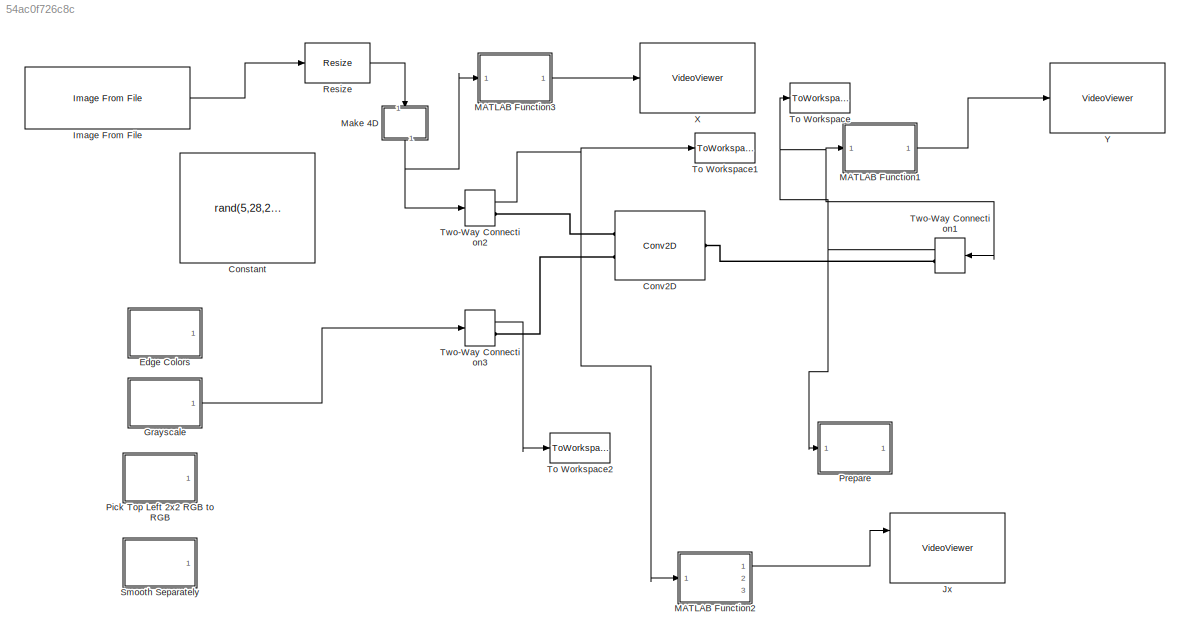
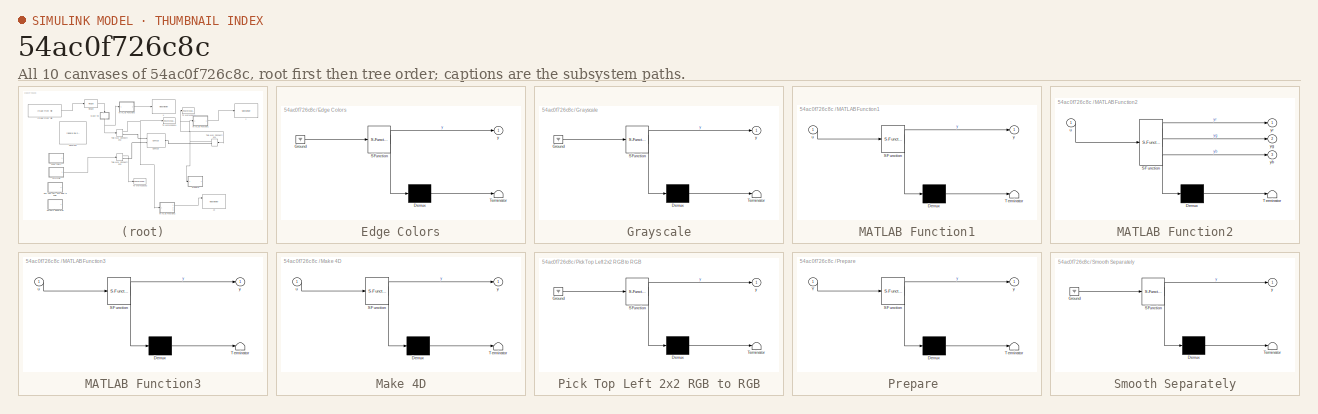
[diagram: thumbnail index - all 10 canvases of the model, root first then tree order]
MODEL slx_54ac0f726c8c
KIND model
CONFIG AbsTol = auto
CONFIG EnableMultiTasking = off
CONFIG FixedStep = 1
CONFIG MaxStep = auto
CONFIG MinStep = auto
CONFIG RelTol = 1e-3
CONFIG SampleTimeConstraint = Unconstrained
CONFIG Solver = FixedStepDiscrete
CONFIG SolverName = FixedStepDiscrete
CONFIG StartTime = 0.0
CONFIG StopTime = 1
BLOCK [Constant] Constant
  Commented = on
  Value = rand(5,28,28,3)
BLOCK [Reference] Conv2D  REF=ad_blocks/Conv2D  (lib defined in slx_3af8d3de87d3)
  Ports = [0, 0, 0, 0, 0, 2, 1]
  SourceBlock = ad_blocks/Conv2D
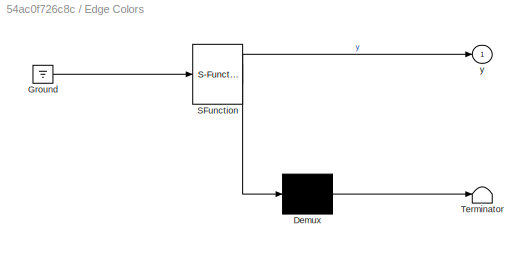
BLOCK [SubSystem] Edge Colors
  ErrorFcn = Stateflow.Translate.translate
  PermitHierarchicalResolution = ExplicitOnly
  Ports = [0, 1]
  RequestExecContextInheritance = off
  SFBlockType = MATLAB Function
  TreatAsAtomicUnit = on
  Variant = off
BLOCK [Demux] Edge Colors/ Demux 
  Outputs = 1
  Ports = [1, 1]
BLOCK [Ground] Edge Colors/ Ground 
BLOCK [S-Function] Edge Colors/ SFunction 
  EnableBusSupport = on
  FunctionName = sf_sfun
  PortCounts = [1 2]
  Ports = [1, 2]
  SFcnIsStateOwnerBlock = off
  SFunctionDeploymentMode = off
  Tag = Stateflow S-Function test_conv2d 8
BLOCK [Terminator] Edge Colors/ Terminator 
BLOCK [Outport] Edge Colors/y
  IconDisplay = Port number
BLOCK [SubSystem] Grayscale
  ErrorFcn = Stateflow.Translate.translate
  PermitHierarchicalResolution = ExplicitOnly
  Ports = [0, 1]
  RequestExecContextInheritance = off
  SFBlockType = MATLAB Function
  TreatAsAtomicUnit = on
  Variant = off
BLOCK [Demux] Grayscale/ Demux 
  Outputs = 1
  Ports = [1, 1]
BLOCK [Ground] Grayscale/ Ground 
BLOCK [S-Function] Grayscale/ SFunction 
  EnableBusSupport = on
  FunctionName = sf_sfun
  PortCounts = [1 2]
  Ports = [1, 2]
  SFcnIsStateOwnerBlock = off
  SFunctionDeploymentMode = off
  Tag = Stateflow S-Function test_conv2d 7
BLOCK [Terminator] Grayscale/ Terminator 
BLOCK [Outport] Grayscale/y
  IconDisplay = Port number
BLOCK [Reference] Image From File  REF=visionsources/Image From File
  Ports = [0, 1]
  SourceBlock = visionsources/Image From File
  SourceProductBaseCode = VP
  SourceProductName = Computer Vision System Toolbox
  SourceType = Image From File
  Tag = vipblks_nd
BLOCK [VideoViewer] Jx
  FigPos = [481 1033 1440 774]
  Ports = [3]
  ScopeSpecificationString = vipscopes.VideoViewerScopeCfg('CurrentConfiguration', extmgr.ConfigurationSet(extmgr.Configuration('Core','General UI',true),extmgr.Configuration('Core','Source UI',true),extmgr.Configuration('Sources','WiredSimulink',true),extmgr.Configuration('Visuals','Video',true),extmgr.Configuration('Tools','Image Navigation Tools',true,'FitToView',true),extmgr.Configuration('Tools','Image Tool',true),extmgr...<+94ch>
  colormapValue = gray(256)
  imagePorts = separate color signals
BLOCK [SubSystem] MATLAB Function1
  ErrorFcn = Stateflow.Translate.translate
  PermitHierarchicalResolution = ExplicitOnly
  Ports = [1, 1]
  RequestExecContextInheritance = off
  SFBlockType = MATLAB Function
  TreatAsAtomicUnit = on
  Variant = off
BLOCK [Demux] MATLAB Function1/ Demux 
  Outputs = 1
  Ports = [1, 1]
BLOCK [S-Function] MATLAB Function1/ SFunction 
  EnableBusSupport = on
  FunctionName = sf_sfun
  PortCounts = [1 2]
  Ports = [1, 2]
  SFcnIsStateOwnerBlock = off
  SFunctionDeploymentMode = off
  Tag = Stateflow S-Function test_conv2d 1
BLOCK [Terminator] MATLAB Function1/ Terminator 
BLOCK [Inport] MATLAB Function1/u
  IconDisplay = Port number
BLOCK [Outport] MATLAB Function1/y
  IconDisplay = Port number
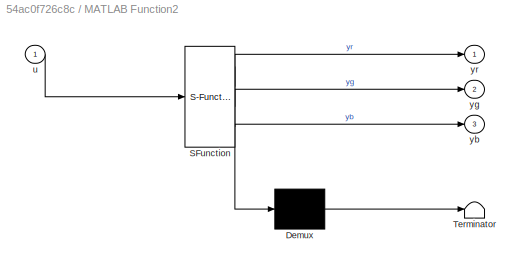
BLOCK [SubSystem] MATLAB Function2
  ErrorFcn = Stateflow.Translate.translate
  PermitHierarchicalResolution = ExplicitOnly
  Ports = [1, 3]
  RequestExecContextInheritance = off
  SFBlockType = MATLAB Function
  TreatAsAtomicUnit = on
  Variant = off
BLOCK [Demux] MATLAB Function2/ Demux 
  Outputs = 1
  Ports = [1, 1]
BLOCK [S-Function] MATLAB Function2/ SFunction 
  EnableBusSupport = on
  FunctionName = sf_sfun
  PortCounts = [1 4]
  Ports = [1, 4]
  SFcnIsStateOwnerBlock = off
  SFunctionDeploymentMode = off
  Tag = Stateflow S-Function test_conv2d 9
BLOCK [Terminator] MATLAB Function2/ Terminator 
BLOCK [Inport] MATLAB Function2/u
  IconDisplay = Port number
BLOCK [Outport] MATLAB Function2/yb
  IconDisplay = Port number
  Port = 3
BLOCK [Outport] MATLAB Function2/yg
  IconDisplay = Port number
  Port = 2
BLOCK [Outport] MATLAB Function2/yr
  IconDisplay = Port number
BLOCK [SubSystem] MATLAB Function3
  ErrorFcn = Stateflow.Translate.translate
  PermitHierarchicalResolution = ExplicitOnly
  Ports = [1, 1]
  RequestExecContextInheritance = off
  SFBlockType = MATLAB Function
  TreatAsAtomicUnit = on
  Variant = off
BLOCK [Demux] MATLAB Function3/ Demux 
  Outputs = 1
  Ports = [1, 1]
BLOCK [S-Function] MATLAB Function3/ SFunction 
  EnableBusSupport = on
  FunctionName = sf_sfun
  PortCounts = [1 2]
  Ports = [1, 2]
  SFcnIsStateOwnerBlock = off
  SFunctionDeploymentMode = off
  Tag = Stateflow S-Function test_conv2d 4
BLOCK [Terminator] MATLAB Function3/ Terminator 
BLOCK [Inport] MATLAB Function3/u
  IconDisplay = Port number
BLOCK [Outport] MATLAB Function3/y
  IconDisplay = Port number
BLOCK [SubSystem] Make 4D
  ErrorFcn = Stateflow.Translate.translate
  PermitHierarchicalResolution = ExplicitOnly
  Ports = [1, 1]
  RequestExecContextInheritance = off
  SFBlockType = MATLAB Function
  TreatAsAtomicUnit = on
  Variant = off
BLOCK [Demux] Make 4D/ Demux 
  Outputs = 1
  Ports = [1, 1]
BLOCK [S-Function] Make 4D/ SFunction 
  EnableBusSupport = on
  FunctionName = sf_sfun
  PortCounts = [1 2]
  Ports = [1, 2]
  SFcnIsStateOwnerBlock = off
  SFunctionDeploymentMode = off
  Tag = Stateflow S-Function test_conv2d 6
BLOCK [Terminator] Make 4D/ Terminator 
BLOCK [Inport] Make 4D/u
  IconDisplay = Port number
BLOCK [Outport] Make 4D/y
  IconDisplay = Port number
BLOCK [SubSystem] Pick Top Left 2x2 RGB to RGB
  ErrorFcn = Stateflow.Translate.translate
  PermitHierarchicalResolution = ExplicitOnly
  Ports = [0, 1]
  RequestExecContextInheritance = off
  SFBlockType = MATLAB Function
  TreatAsAtomicUnit = on
  Variant = off
BLOCK [Demux] Pick Top Left 2x2 RGB to RGB/ Demux 
  Outputs = 1
  Ports = [1, 1]
BLOCK [Ground] Pick Top Left 2x2 RGB to RGB/ Ground 
BLOCK [S-Function] Pick Top Left 2x2 RGB to RGB/ SFunction 
  EnableBusSupport = on
  FunctionName = sf_sfun
  PortCounts = [1 2]
  Ports = [1, 2]
  SFcnIsStateOwnerBlock = off
  SFunctionDeploymentMode = off
  Tag = Stateflow S-Function test_conv2d 3
BLOCK [Terminator] Pick Top Left 2x2 RGB to RGB/ Terminator 
BLOCK [Outport] Pick Top Left 2x2 RGB to RGB/y
  IconDisplay = Port number
BLOCK [SubSystem] Prepare 
  ErrorFcn = Stateflow.Translate.translate
  PermitHierarchicalResolution = ExplicitOnly
  Ports = [1, 1]
  RequestExecContextInheritance = off
  SFBlockType = MATLAB Function
  TreatAsAtomicUnit = on
  Variant = off
BLOCK [Demux] Prepare / Demux 
  Outputs = 1
  Ports = [1, 1]
BLOCK [S-Function] Prepare / SFunction 
  EnableBusSupport = on
  FunctionName = sf_sfun
  PortCounts = [1 2]
  Ports = [1, 2]
  SFcnIsStateOwnerBlock = off
  SFunctionDeploymentMode = off
  Tag = Stateflow S-Function test_conv2d 2
BLOCK [Terminator] Prepare / Terminator 
BLOCK [Inport] Prepare /Y
  IconDisplay = Port number
BLOCK [Outport] Prepare /y
  IconDisplay = Port number
BLOCK [Reference] Resize  REF=visiongeotforms/Resize
  Ports = [1, 1]
  SourceBlock = visiongeotforms/Resize
  SourceProductBaseCode = VP
  SourceProductName = Computer Vision System Toolbox
  SourceType = Resize
BLOCK [SubSystem] Smooth Separately
  ErrorFcn = Stateflow.Translate.translate
  PermitHierarchicalResolution = ExplicitOnly
  Ports = [0, 1]
  RequestExecContextInheritance = off
  SFBlockType = MATLAB Function
  TreatAsAtomicUnit = on
  Variant = off
BLOCK [Demux] Smooth Separately/ Demux 
  Outputs = 1
  Ports = [1, 1]
BLOCK [Ground] Smooth Separately/ Ground 
BLOCK [S-Function] Smooth Separately/ SFunction 
  EnableBusSupport = on
  FunctionName = sf_sfun
  PortCounts = [1 2]
  Ports = [1, 2]
  SFcnIsStateOwnerBlock = off
  SFunctionDeploymentMode = off
  Tag = Stateflow S-Function test_conv2d 5
BLOCK [Terminator] Smooth Separately/ Terminator 
BLOCK [Outport] Smooth Separately/y
  IconDisplay = Port number
BLOCK [ToWorkspace] To Workspace
  FixptAsFi = on
  MaxDataPoints = inf
  Ports = [1]
  SampleTime = -1
  Save2DSignal = 3-D array (concatenate along third dimension)
  SaveFormat = Timeseries
  VariableName = y
BLOCK [ToWorkspace] To Workspace1
  FixptAsFi = on
  MaxDataPoints = inf
  Ports = [1]
  SampleTime = -1
  Save2DSignal = 3-D array (concatenate along third dimension)
  SaveFormat = Timeseries
  VariableName = Jx
BLOCK [ToWorkspace] To Workspace2
  FixptAsFi = on
  MaxDataPoints = inf
  Ports = [1]
  SampleTime = -1
  Save2DSignal = 3-D array (concatenate along third dimension)
  SaveFormat = Timeseries
  VariableName = JW
BLOCK [TwoWayConnection] Two-Way Connection1
  Ports = [1, 1, 0, 0, 0, 0, 1]
BLOCK [TwoWayConnection] Two-Way Connection2
  Ports = [1, 1, 0, 0, 0, 0, 1]
BLOCK [TwoWayConnection] Two-Way Connection3
  Ports = [1, 1, 0, 0, 0, 0, 1]
BLOCK [VideoViewer] X
  FigPos = [917 894 418 304]
  Ports = [1]
  ScopeSpecificationString = vipscopes.VideoViewerScopeCfg('CurrentConfiguration', extmgr.ConfigurationSet(extmgr.Configuration('Core','General UI',true),extmgr.Configuration('Core','Source UI',true),extmgr.Configuration('Sources','WiredSimulink',true),extmgr.Configuration('Visuals','Video',true),extmgr.Configuration('Tools','Image Navigation Tools',true,'FitToView',true),extmgr.Configuration('Tools','Image Tool',true),extmgr...<+116ch>
  colormapValue = gray(256)
BLOCK [VideoViewer] Y
  FigPos = [537 930 1440 774]
  Ports = [1]
  ScopeSpecificationString = vipscopes.VideoViewerScopeCfg('CurrentConfiguration', extmgr.ConfigurationSet(extmgr.Configuration('Core','General UI',true),extmgr.Configuration('Core','Source UI',true),extmgr.Configuration('Sources','WiredSimulink',true),extmgr.Configuration('Visuals','Video',true),extmgr.Configuration('Tools','Image Navigation Tools',true,'FitToView',true),extmgr.Configuration('Tools','Image Tool',true),extmgr...<+93ch>
  colormapValue = gray(256)
LINE Grayscale:1 -> Two-Way Connection3:1
LINE Image From File:1 -> Resize:1
LINE MATLAB Function1:1 -> Y:1
LINE MATLAB Function2:1 -> Jx:1
LINE MATLAB Function3:1 -> X:1
NET Make 4D:1 -> MATLAB Function3:1, Two-Way Connection2:1
LINE Resize:1 -> Make 4D:1
NET Two-Way Connection1:1 -> MATLAB Function1:1, Prepare :1, To Workspace:1, Two-Way Connection1:1
NET Two-Way Connection2:1 -> MATLAB Function2:1, To Workspace1:1
LINE Two-Way Connection3:1 -> To Workspace2:1
PLINE Conv2D:LConn1 -- Two-Way Connection2:RConn1
PLINE Conv2D:LConn2 -- Two-Way Connection3:RConn1
PLINE Conv2D:RConn1 -- Two-Way Connection1:RConn1
note: NET lines group one-source signal fan-out (src -> all destinations, sorted); 1:1 wires keep LINE
CHART MATLAB Function1 states=1 transitions=1
  STATE_LABEL 'eML_blk_kernel()'
  STATE_LABEL 'SCRIPT:\nfunction y = fcn(u)\ny = squeeze(u(1,:,:,:));\n'
CHART Prepare
 states=1 transitions=1
  STATE_LABEL 'eML_blk_kernel()'
  STATE_LABEL 'SCRIPT:\nfunction y = fcn(Y)\n\ny = ones(size(Y));'
CHART Pick Top Left 2x2 RGB to RGB states=1 transitions=1
  STATE_LABEL 'eML_blk_kernel()'
  STATE_LABEL 'SCRIPT:\nfunction y = fcn()\ny = zeros(2,2,3,3);\n\ny(1,1,1,1) = 1;\ny(1,1,2,2) = 1;\ny(1,1,3,3) = 1;'
CHART MATLAB Function3 states=1 transitions=1
  STATE_LABEL 'eML_blk_kernel()'
  STATE_LABEL 'SCRIPT:\nfunction y = fcn(u)\ny = squeeze(u(1,:,:,:));'
CHART Smooth Separately states=1 transitions=1
  STATE_LABEL 'eML_blk_kernel()'
  STATE_LABEL 'SCRIPT:\nfunction y = fcn()\ny = zeros(2,2,3,3);\n\ny(:,:,1,1) = 1/4;\ny(:,:,2,2) = 1/4;\ny(:,:,3,3) = 1/4;'
CHART Make 4D states=1 transitions=1
  STATE_LABEL 'eML_blk_kernel()'
  STATE_LABEL 'SCRIPT:\nfunction y = fcn(u)\ny = reshape(u,[1,size(u)]);\n'
CHART Grayscale states=1 transitions=1
  STATE_LABEL 'eML_blk_kernel()'
  STATE_LABEL 'SCRIPT:\nfunction y = fcn()\ny = zeros(2,2,3,1); % Kh Kw Cin Cout\ny(1,1,1,1) = 0.2989;\ny(1,1,2,1) =  0.5870;\ny(1,1,3,1) = 0.1140;'
CHART Edge Colors states=1 transitions=1
  STATE_LABEL 'eML_blk_kernel()'
  STATE_LABEL 'SCRIPT:\nfunction y = fcn()\ny = zeros(3,3,3,3);\n\ny(1,1,1,1) = -1;\ny(2,1,1,1) =  -1;\ny(3,1,1,1) = -1;\n\ny(1,3,1,1) = 1;\ny(2,3,1,1) =  1;\ny(3,3,1,1) = 1;\n\n\ny(1,1,1,2) = -1;\ny(1,2,1,2) =  -1;\ny(1,3,1,2) = -1;\n\ny(3,1,1,2) = 1;\ny(3,2,1,2) =  1;\ny(3,3,1,2) = 1;'
CHART MATLAB Function2 states=1 transitions=1
  STATE_LABEL 'eML_blk_kernel()'
  STATE_LABEL 'SCRIPT:\nfunction [yr,yg,yb] = fcn(u)\nyr = squeeze(u(1,:,:,1));\nyg = squeeze(u(1,:,:,2));\nyb = squeeze(u(1,:,:,3));'
